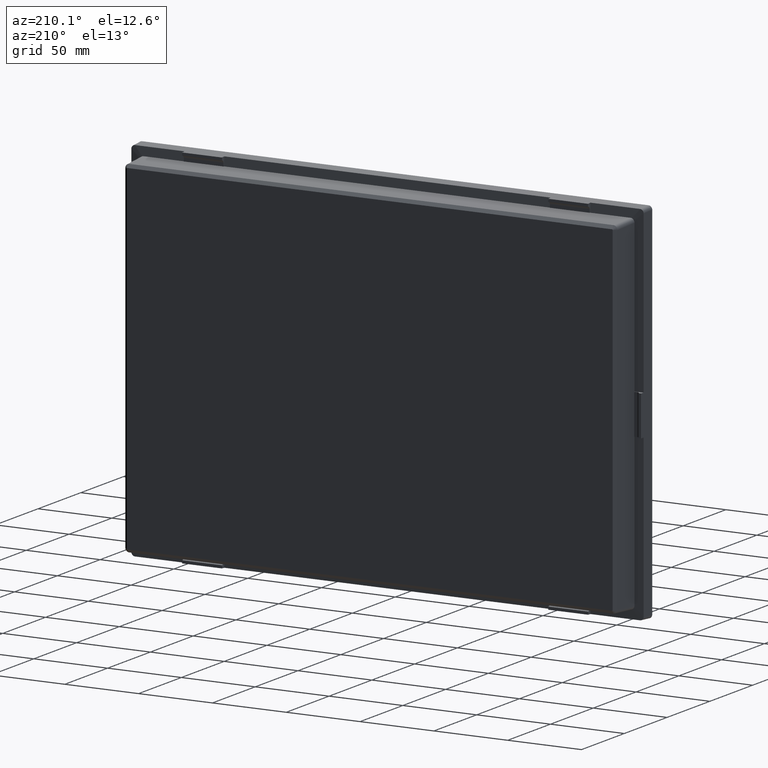
[diagram: clean part render]
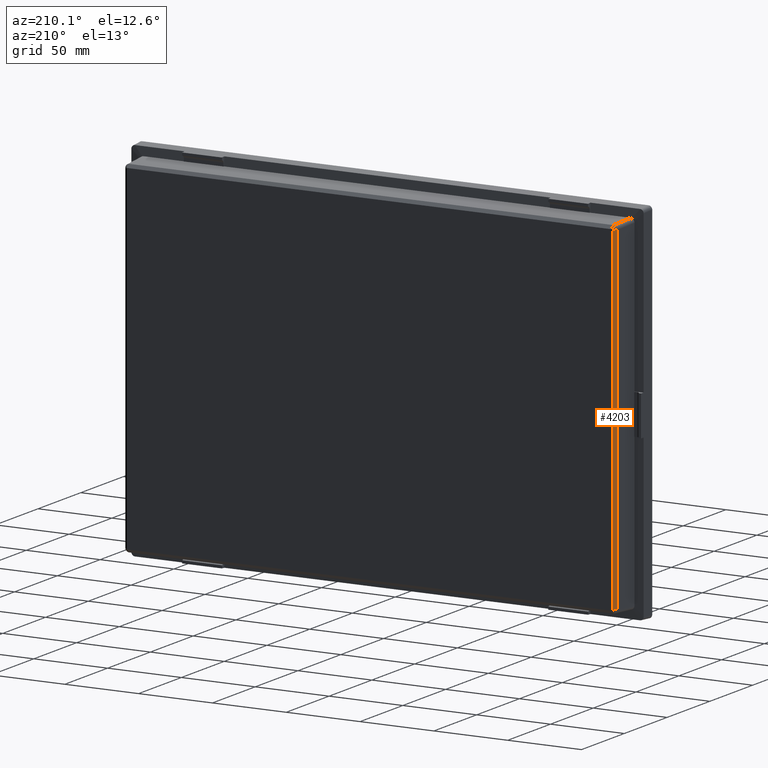
[diagram: same view with one face highlighted and labeled with its STEP entity id]
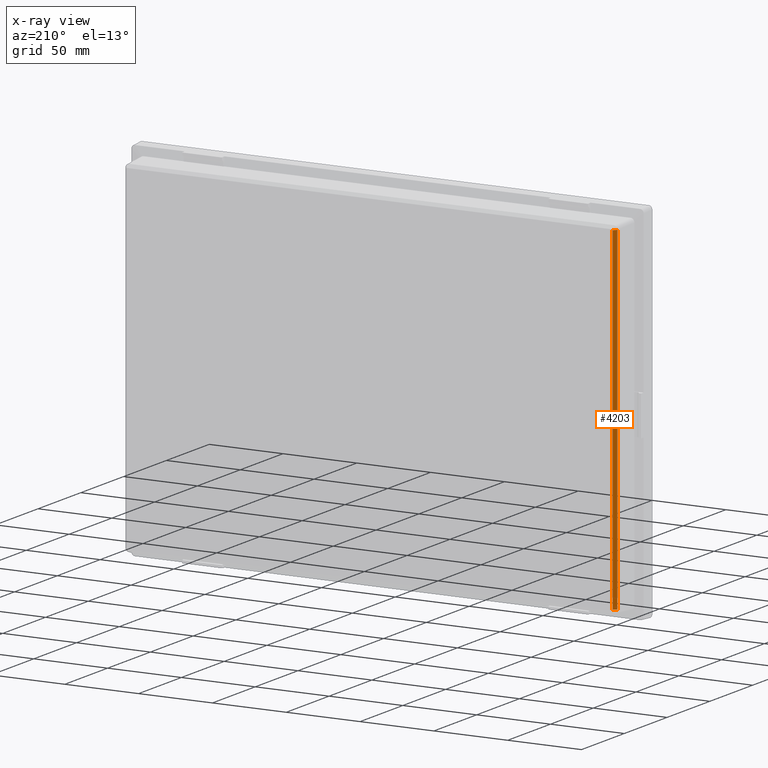
[diagram: x-ray of the same camera — body ghosted, the highlighted face saturated]
A machine part, auxiliary view. The second image highlights one B-rep face of the part: STEP entity #4203.
The next image is the same camera in x-ray: the body ghosted, the highlighted face saturated — about 0% of this face is hidden behind the body in this view.
In plain terms, the highlighted planar face has unit normal (0.6884, -0.7254, 0).
Its self-contained STEP definition (entity closure, byte-faithful):
#4 = B_SPLINE_CURVE_WITH_KNOTS ( 'NONE', 3,
 ( #475, #476, #477, #478 ),
 .UNSPECIFIED., .F., .F.,
 ( 4, 4 ),
 ( 0.0000000000000000000, 1.000000000000000000 ),
 .UNSPECIFIED. ) ;
#176 = VECTOR ( 'NONE', #3409, 1000.000000000000000 ) ;
#185 = VECTOR ( 'NONE', #3769, 1000.000000000000000 ) ;
#475 = CARTESIAN_POINT ( 'NONE',  ( -166.6493637655999900, 28.00281256858999900, 114.0029248293000000 ) ) ;
#476 = CARTESIAN_POINT ( 'NONE',  ( -165.9477384883881800, 28.66849395925718000, 114.0029257405817200 ) ) ;
#477 = CARTESIAN_POINT ( 'NONE',  ( -165.2461811861503500, 29.33424698060098000, 114.0029266518634300 ) ) ;
#478 = CARTESIAN_POINT ( 'NONE',  ( -164.5446417082999900, 30.00001878492999900, 114.0029275632000000 ) ) ;
#697 = CARTESIAN_POINT ( 'NONE',  ( -166.6493637655999900, 28.00281256858999900, 114.0029248293000000 ) ) ;
#702 = CARTESIAN_POINT ( 'NONE',  ( -166.6493637655999900, 28.00281256858999900, -114.0029248293000000 ) ) ;
#722 = CARTESIAN_POINT ( 'NONE',  ( -164.5446417082999900, 30.00001878492999900, -114.0029275632000000 ) ) ;
#737 = CARTESIAN_POINT ( 'NONE',  ( -164.5446417082999900, 30.00001878492999900, 114.0029275632000000 ) ) ;
#778 = B_SPLINE_CURVE_WITH_KNOTS ( 'NONE', 3,
 ( #4309, #4310, #4311, #4312 ),
 .UNSPECIFIED., .F., .F.,
 ( 4, 4 ),
 ( 0.0000000000000000000, 1.000000000000000000 ),
 .UNSPECIFIED. ) ;
#1217 = EDGE_LOOP ( 'NONE', ( #1330, #1331, #1332, #1328 ) ) ;
#1328 = ORIENTED_EDGE ( 'NONE', *, *, #1831, .F. ) ;
#1330 = ORIENTED_EDGE ( 'NONE', *, *, #1931, .T. ) ;
#1331 = ORIENTED_EDGE ( 'NONE', *, *, #1811, .F. ) ;
#1332 = ORIENTED_EDGE ( 'NONE', *, *, #1821, .F. ) ;
#1470 = FACE_OUTER_BOUND ( 'NONE', #1217, .T. ) ;
#1811 = EDGE_CURVE ( 'NONE', #2235, #2250, #2441, .T. ) ;
#1821 = EDGE_CURVE ( 'NONE', #2215, #2235, #778, .T. ) ;
#1831 = EDGE_CURVE ( 'NONE', #2210, #2215, #2450, .T. ) ;
#1931 = EDGE_CURVE ( 'NONE', #2210, #2250, #4, .T. ) ;
#2210 = VERTEX_POINT ( 'NONE', #697 ) ;
#2215 = VERTEX_POINT ( 'NONE', #702 ) ;
#2235 = VERTEX_POINT ( 'NONE', #722 ) ;
#2250 = VERTEX_POINT ( 'NONE', #737 ) ;
#2441 = LINE ( 'NONE', #3410, #176 ) ;
#2450 = LINE ( 'NONE', #3770, #185 ) ;
#2577 = AXIS2_PLACEMENT_3D ( 'NONE', #2953, #2954, #2955 ) ;
#2952 = PLANE ( 'NONE',  #2577 ) ;
#2953 = CARTESIAN_POINT ( 'NONE',  ( -165.5969598421999900, 29.00137046525000500, 25.00000000000000000 ) ) ;
#2954 = DIRECTION ( 'NONE',  ( 0.6883545756937721200, -0.7253743710122705400, 0.0000000000000000000 ) ) ;
#2955 = DIRECTION ( 'NONE',  ( 0.7253743710122704200, 0.6883545756937720100, 0.0000000000000000000 ) ) ;
#3409 = DIRECTION ( 'NONE',  ( -0.0000000000000000000, 0.0000000000000000000, 1.000000000000000000 ) ) ;
#3410 = CARTESIAN_POINT ( 'NONE',  ( -164.5446238859619300, 30.00000000000000000, 25.00000000000000000 ) ) ;
#3769 = DIRECTION ( 'NONE',  ( 0.0000000000000000000, 0.0000000000000000000, -1.000000000000000000 ) ) ;
#3770 = CARTESIAN_POINT ( 'NONE',  ( -166.6492957984398800, 28.00274093049828700, 117.6085018054000000 ) ) ;
#4203 = ADVANCED_FACE ( 'NONE', ( #1470 ), #2952, .F. ) ;
#4309 = CARTESIAN_POINT ( 'NONE',  ( -166.6493637655999900, 28.00281256858999900, -114.0029248293000000 ) ) ;
#4310 = CARTESIAN_POINT ( 'NONE',  ( -165.9479375502386100, 28.66870391280611600, -114.0029230272222700 ) ) ;
#4311 = CARTESIAN_POINT ( 'NONE',  ( -165.2463074455626200, 29.33438020343926000, -114.0029266617389800 ) ) ;
#4312 = CARTESIAN_POINT ( 'NONE',  ( -164.5446417082999900, 30.00001878492999900, -114.0029275632000000 ) ) ;